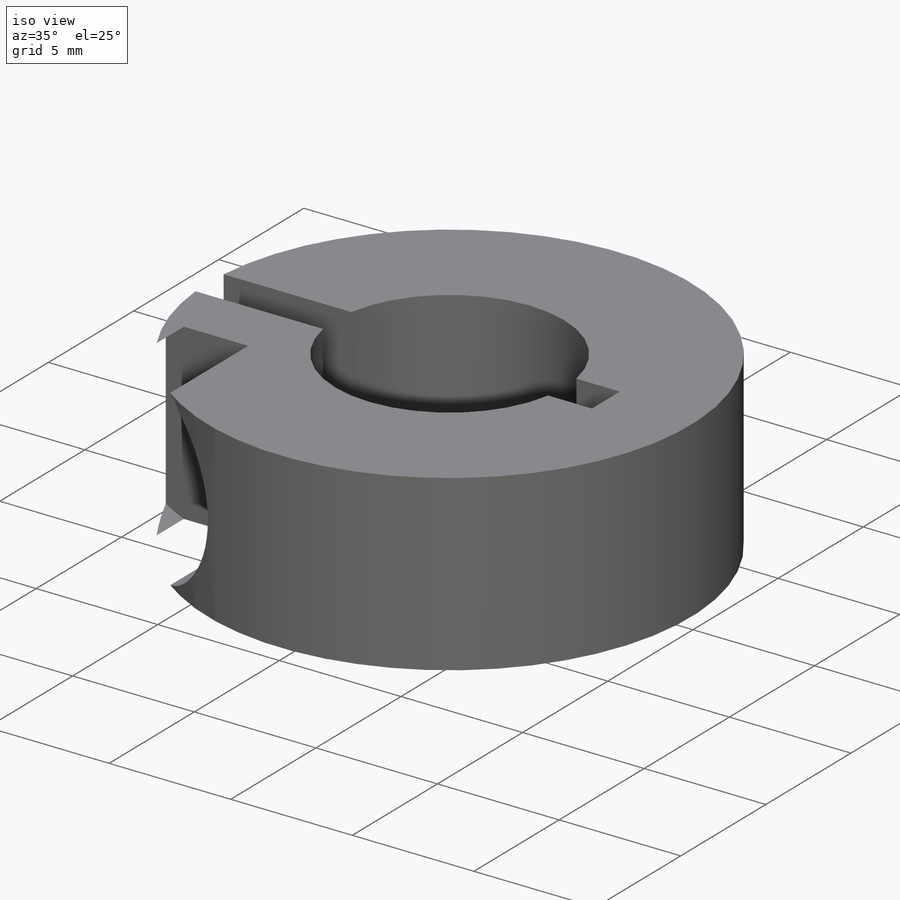
[diagram: iso view]
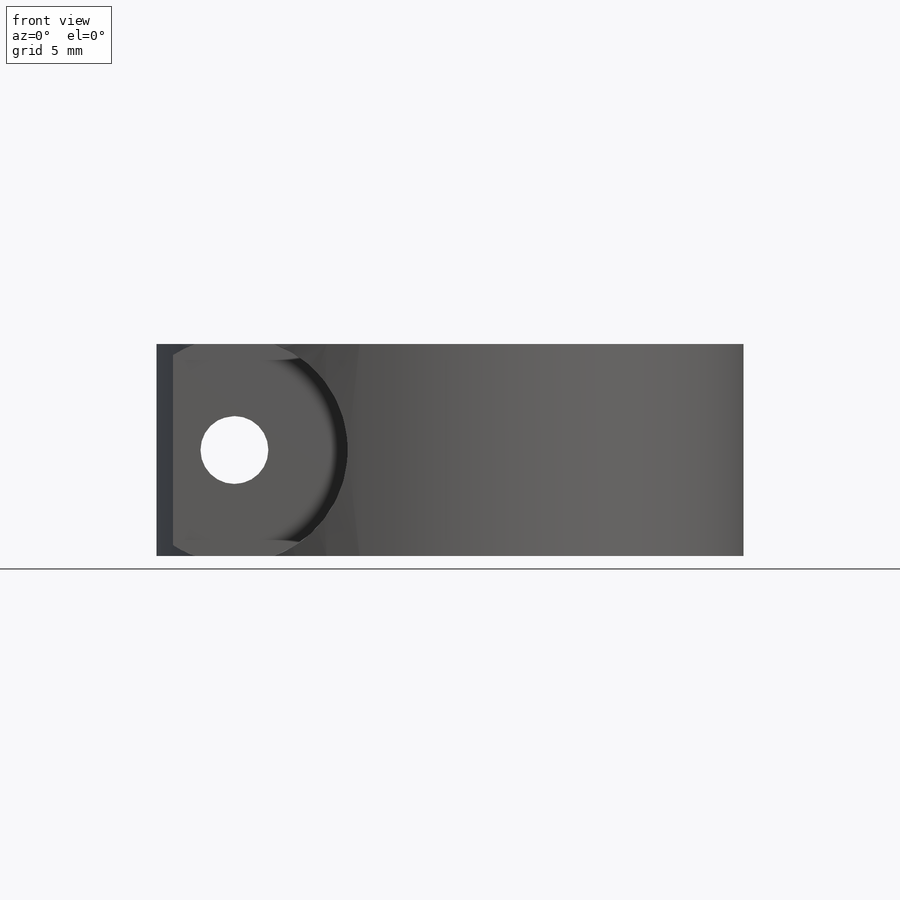
[diagram: front view]
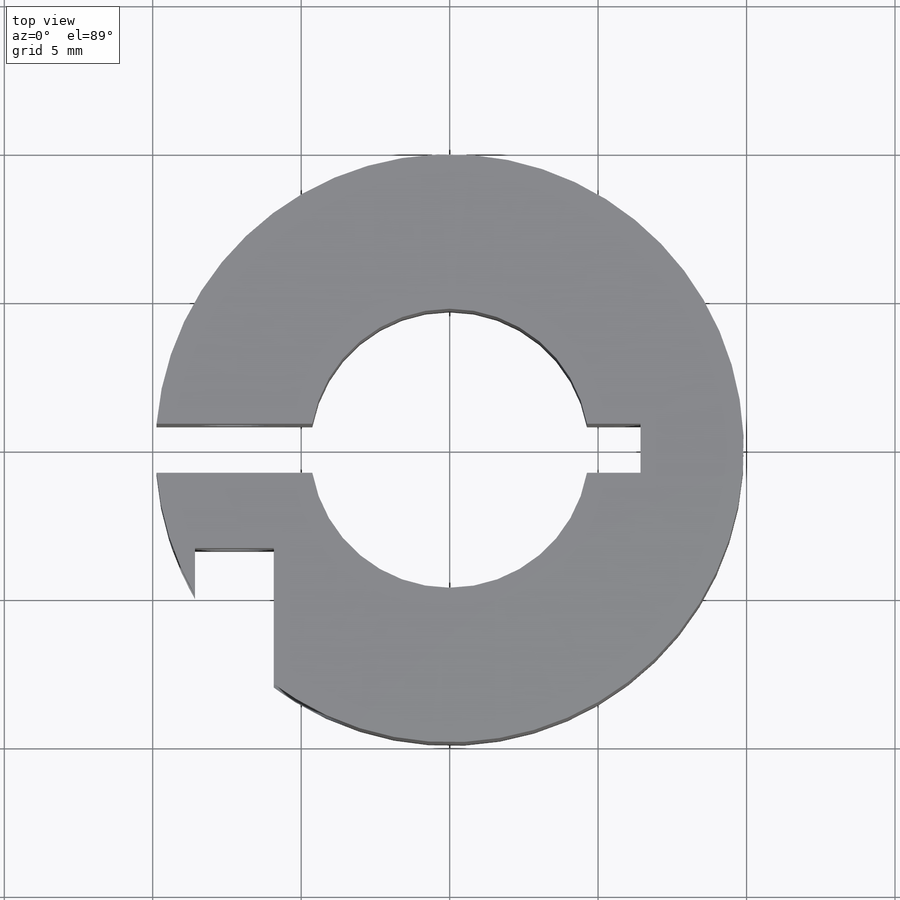
[diagram: top view]
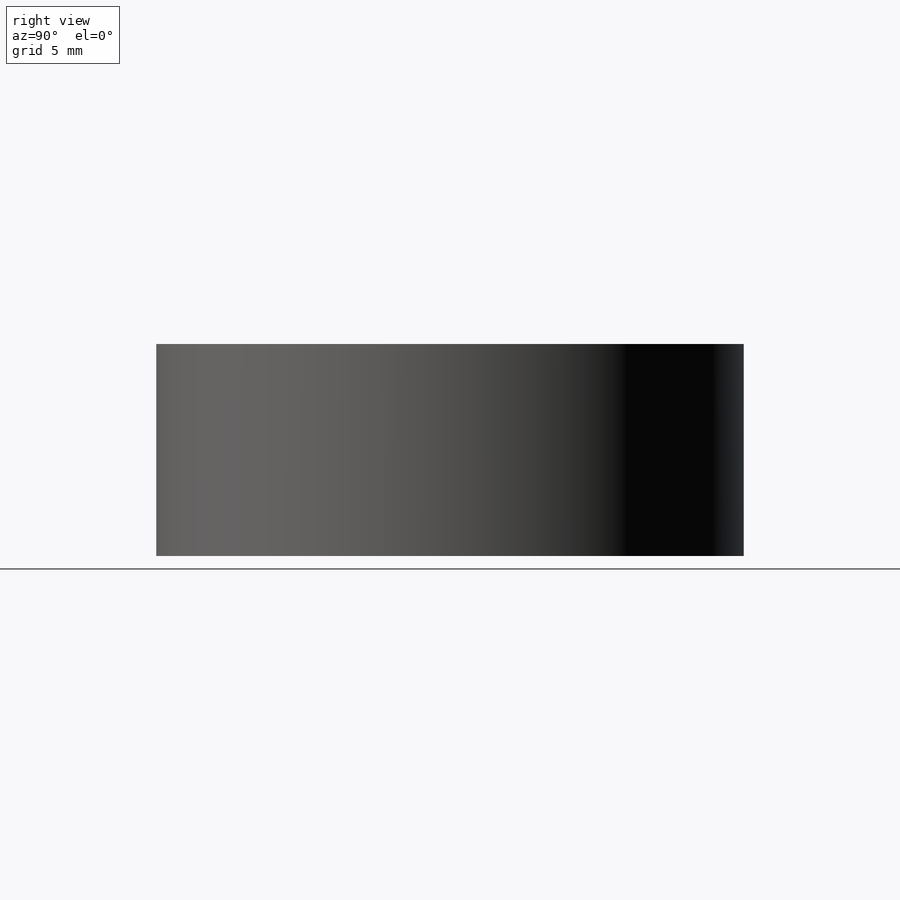
[diagram: right view]
SOLIDWORKS PART (.sldprt)
format: sldprt  version: not decoded by parser v0  size: 198,656 bytes
history: native  units: mm
features: sketch x5, cut_extrude x4, plane x2, material x1, extrude x1 (+13 scaffold rows collapsed)
feature tree (26):
  scaffold x13  (default folders/planes/origin — collapsed)
  material  "Material <not specified>"
  sketch  "Sketch1"  dims[D1=19.812mm]
  extrude  "Boss-Extrude1"  Depth=7.14375mm
  sketch  "Sketch2"  dims[D1=9.398mm]
  cut_extrude  "Cut-Extrude1"  [1 undecoded]
  plane  "Plane1"
  sketch  "Sketch5"  dims[D1=0.8255mm D2=1.651mm]
  cut_extrude  "Cut-Extrude3"  Depth=16.3322mm
  sketch  "Sketch6"  dims[D1=1.27mm]
  cut_extrude  "Cut-Extrude4"  [1 undecoded]
  plane  "Plane2"  Offset=2.54mm
  sketch  "Sketch8"  dims[D1=0.381mm]
  cut_extrude  "Cut-Extrude5"  Depth=16.3322mm
decode coverage: 8 of 10 modeling features carry decoded parameters
note: 2 parameter values undecoded
note: suppression state not decoded; provenance and decode notes live in map.json
